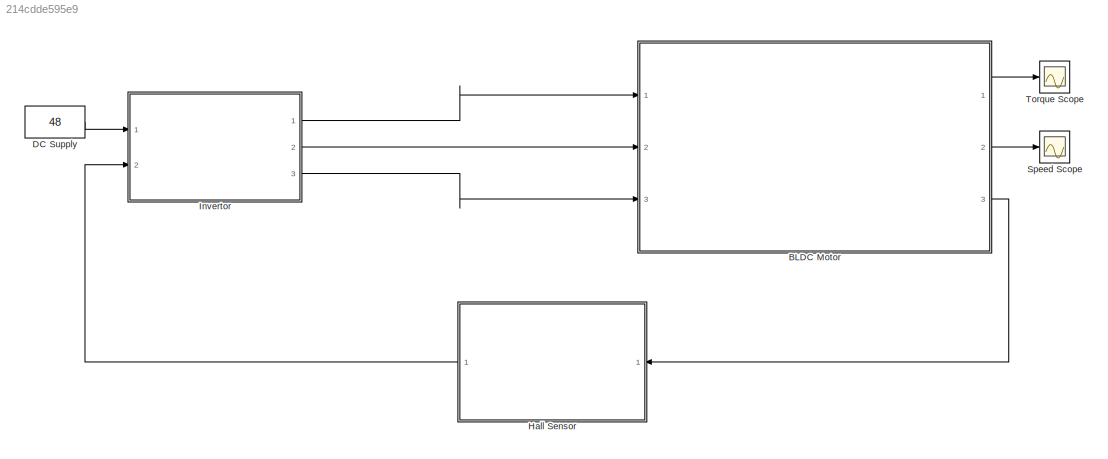
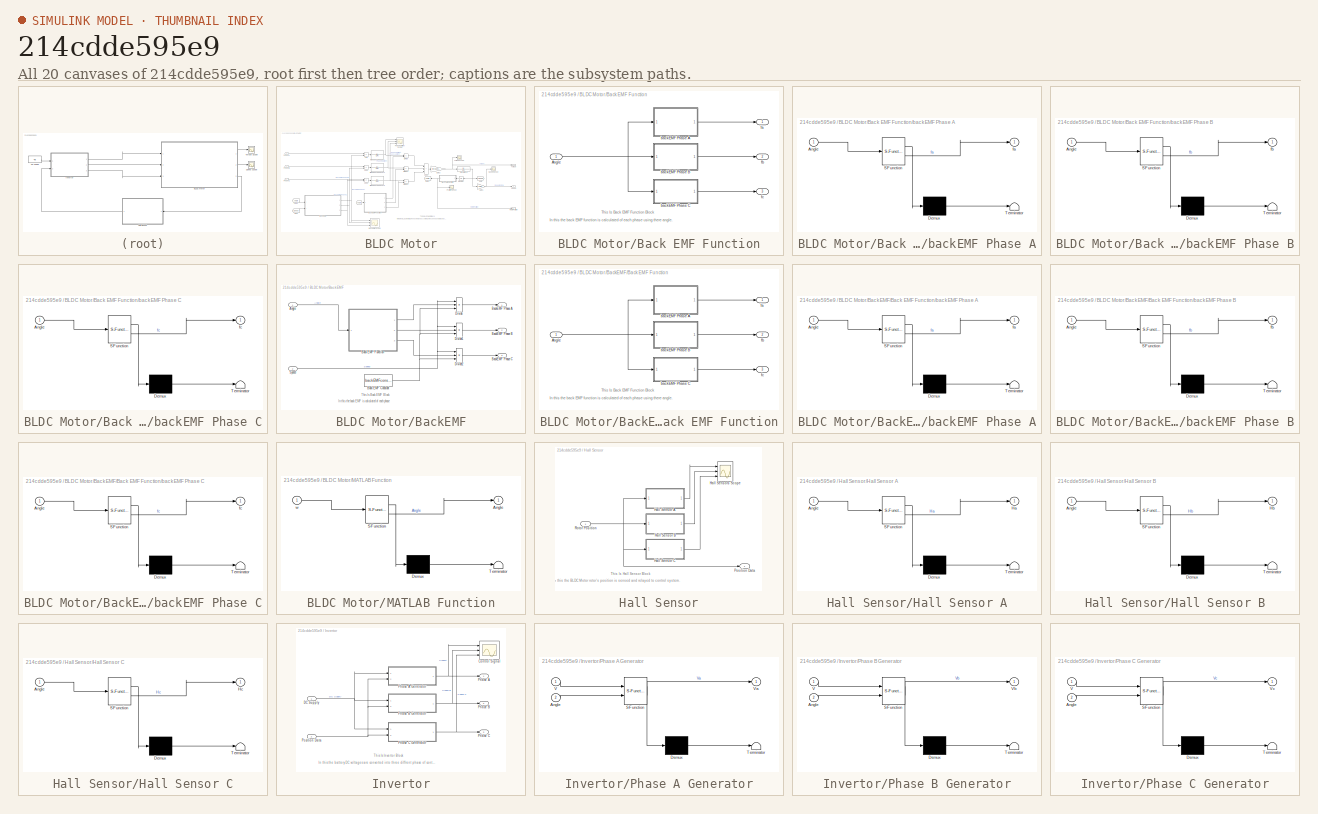
[diagram: thumbnail index - all 20 canvases of the model, root first then tree order]
MODEL slx_214cdde595e9
KIND model
CONFIG AbsTol = auto
CONFIG EnableMultiTasking = off
CONFIG FixedStep = auto
CONFIG MaxStep = auto
CONFIG MinStep = auto
CONFIG RelTol = 1e-3
CONFIG SampleTimeConstraint = Unconstrained
CONFIG SolverName = VariableStepAuto
CONFIG StartTime = 0.0
CONFIG StopTime = 1
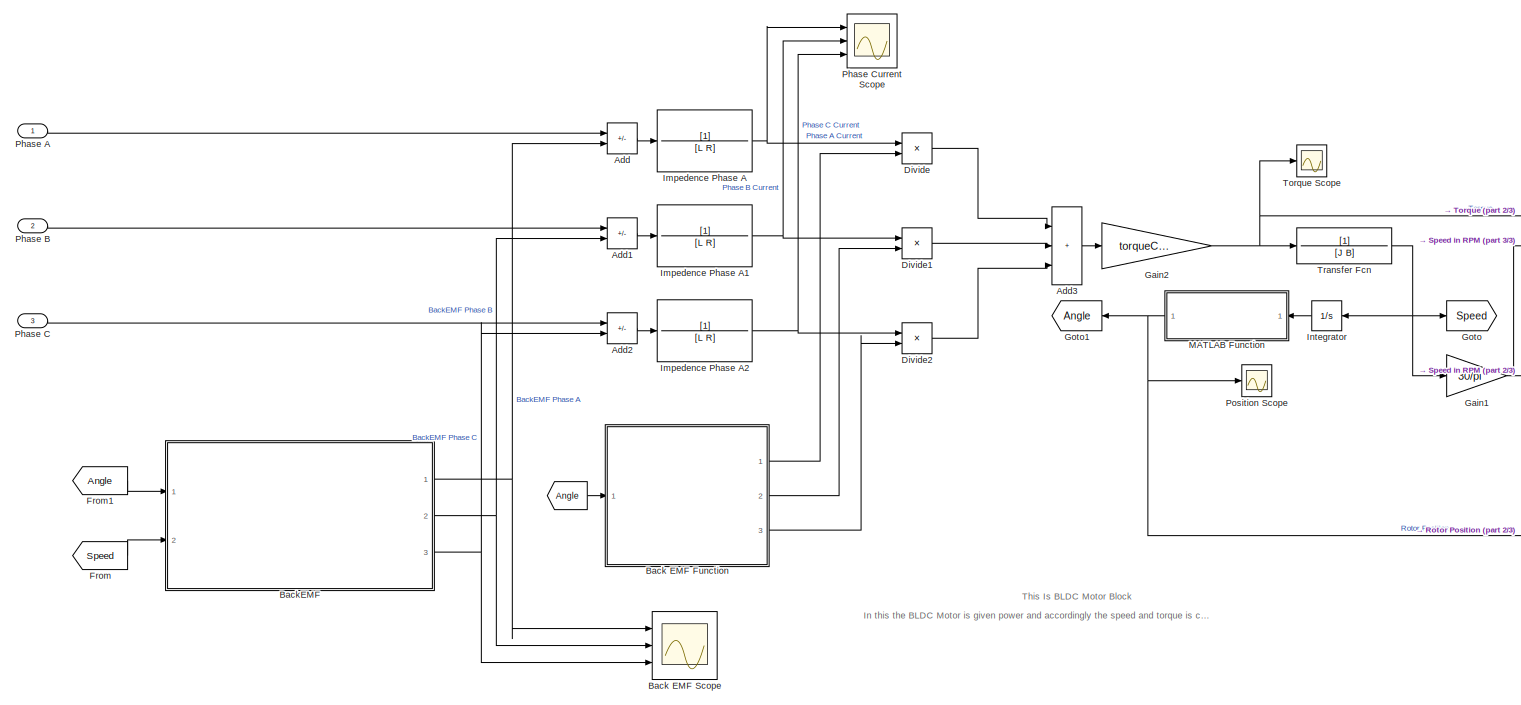
[diagram: BLDC Motor - part 1/3, most of the canvas]
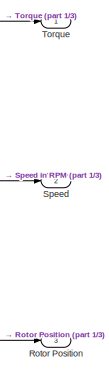
[diagram: BLDC Motor - part 2/3, middle right region]
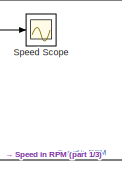
[diagram: BLDC Motor - part 3/3, middle right region]
BLOCK [SubSystem] BLDC Motor
  Ports = [3, 3]
  RequestExecContextInheritance = off
BLOCK [From] BLDC Motor/                            
  GotoTag = Angle
BLOCK [Sum] BLDC Motor/Add
  IconShape = rectangular
  Inputs = +-
  Ports = [2, 1]
BLOCK [Sum] BLDC Motor/Add1
  IconShape = rectangular
  Inputs = +-
  Ports = [2, 1]
BLOCK [Sum] BLDC Motor/Add2
  IconShape = rectangular
  Inputs = +-
  Ports = [2, 1]
BLOCK [Sum] BLDC Motor/Add3
  IconShape = rectangular
  Inputs = +++
  Ports = [3, 1]
BLOCK [SubSystem] BLDC Motor/Back EMF Function
  Ports = [1, 3]
  RequestExecContextInheritance = off
BLOCK [Inport] BLDC Motor/Back EMF Function/Angle
BLOCK [SubSystem] BLDC Motor/Back EMF Function/backEMF Phase A
  ErrorFcn = Stateflow.Translate.translate
  PermitHierarchicalResolution = ExplicitOnly
  Ports = [1, 1]
  RequestExecContextInheritance = off
  SFBlockType = MATLAB Function
  TreatAsAtomicUnit = on
BLOCK [Demux] BLDC Motor/Back EMF Function/backEMF Phase A/ Demux 
  Outputs = 1
  Ports = [1, 1]
BLOCK [S-Function] BLDC Motor/Back EMF Function/backEMF Phase A/ SFunction 
  EnableBusSupport = on
  FunctionName = sf_sfun
  PortCounts = [1 2]
  Ports = [1, 2]
  SFcnIsStateOwnerBlock = off
  SFunctionDeploymentMode = off
  Tag = Stateflow S-Function 14
BLOCK [Terminator] BLDC Motor/Back EMF Function/backEMF Phase A/ Terminator 
BLOCK [Inport] BLDC Motor/Back EMF Function/backEMF Phase A/Angle
BLOCK [Outport] BLDC Motor/Back EMF Function/backEMF Phase A/fa
BLOCK [SubSystem] BLDC Motor/Back EMF Function/backEMF Phase B
  ErrorFcn = Stateflow.Translate.translate
  PermitHierarchicalResolution = ExplicitOnly
  Ports = [1, 1]
  RequestExecContextInheritance = off
  SFBlockType = MATLAB Function
  TreatAsAtomicUnit = on
BLOCK [Demux] BLDC Motor/Back EMF Function/backEMF Phase B/ Demux 
  Outputs = 1
  Ports = [1, 1]
BLOCK [S-Function] BLDC Motor/Back EMF Function/backEMF Phase B/ SFunction 
  EnableBusSupport = on
  FunctionName = sf_sfun
  PortCounts = [1 2]
  Ports = [1, 2]
  SFcnIsStateOwnerBlock = off
  SFunctionDeploymentMode = off
  Tag = Stateflow S-Function 15
BLOCK [Terminator] BLDC Motor/Back EMF Function/backEMF Phase B/ Terminator 
BLOCK [Inport] BLDC Motor/Back EMF Function/backEMF Phase B/Angle
BLOCK [Outport] BLDC Motor/Back EMF Function/backEMF Phase B/fb
BLOCK [SubSystem] BLDC Motor/Back EMF Function/backEMF Phase C
  ErrorFcn = Stateflow.Translate.translate
  PermitHierarchicalResolution = ExplicitOnly
  Ports = [1, 1]
  RequestExecContextInheritance = off
  SFBlockType = MATLAB Function
  TreatAsAtomicUnit = on
BLOCK [Demux] BLDC Motor/Back EMF Function/backEMF Phase C/ Demux 
  Outputs = 1
  Ports = [1, 1]
BLOCK [S-Function] BLDC Motor/Back EMF Function/backEMF Phase C/ SFunction 
  EnableBusSupport = on
  FunctionName = sf_sfun
  PortCounts = [1 2]
  Ports = [1, 2]
  SFcnIsStateOwnerBlock = off
  SFunctionDeploymentMode = off
  Tag = Stateflow S-Function 16
BLOCK [Terminator] BLDC Motor/Back EMF Function/backEMF Phase C/ Terminator 
BLOCK [Inport] BLDC Motor/Back EMF Function/backEMF Phase C/Angle
BLOCK [Outport] BLDC Motor/Back EMF Function/backEMF Phase C/fc
BLOCK [Outport] BLDC Motor/Back EMF Function/fa
BLOCK [Outport] BLDC Motor/Back EMF Function/fb
  Port = 2
BLOCK [Outport] BLDC Motor/Back EMF Function/fc
  Port = 3
BLOCK [Scope] BLDC Motor/Back EMF Scope
  Floating = off
  NumInputPorts = 3
  Ports = [3]
  ScopeSpecificationString = Simulink.scopes.TimeScopeBlockCfg('CurrentConfiguration', extmgr.ConfigurationSet(extmgr.Configuration('Core','General UI',true),extmgr.Configuration('Core','Source UI',true),extmgr.Configuration('Sources','WiredSimulink',true,'DataLoggingVariableName','ScopeData9'),extmgr.Configuration('Visuals','Time Domain',true,'SerializedDisplays',{struct('MinYLimReal','-19.17112','MaxYLimReal','19.66505','YL...<+3369ch>
BLOCK [SubSystem] BLDC Motor/BackEMF
  Ports = [2, 3]
  RequestExecContextInheritance = off
BLOCK [Inport] BLDC Motor/BackEMF/Angle
BLOCK [Constant] BLDC Motor/BackEMF/Back EMF Constant
  Value = backEMFconstant
BLOCK [SubSystem] BLDC Motor/BackEMF/Back EMF Function
  Ports = [1, 3]
  RequestExecContextInheritance = off
BLOCK [Inport] BLDC Motor/BackEMF/Back EMF Function/Angle
BLOCK [SubSystem] BLDC Motor/BackEMF/Back EMF Function/backEMF Phase A
  ErrorFcn = Stateflow.Translate.translate
  PermitHierarchicalResolution = ExplicitOnly
  Ports = [1, 1]
  RequestExecContextInheritance = off
  SFBlockType = MATLAB Function
  TreatAsAtomicUnit = on
BLOCK [Demux] BLDC Motor/BackEMF/Back EMF Function/backEMF Phase A/ Demux 
  Outputs = 1
  Ports = [1, 1]
BLOCK [S-Function] BLDC Motor/BackEMF/Back EMF Function/backEMF Phase A/ SFunction 
  EnableBusSupport = on
  FunctionName = sf_sfun
  PortCounts = [1 2]
  Ports = [1, 2]
  SFcnIsStateOwnerBlock = off
  SFunctionDeploymentMode = off
  Tag = Stateflow S-Function 11
BLOCK [Terminator] BLDC Motor/BackEMF/Back EMF Function/backEMF Phase A/ Terminator 
BLOCK [Inport] BLDC Motor/BackEMF/Back EMF Function/backEMF Phase A/Angle
BLOCK [Outport] BLDC Motor/BackEMF/Back EMF Function/backEMF Phase A/fa
BLOCK [SubSystem] BLDC Motor/BackEMF/Back EMF Function/backEMF Phase B
  ErrorFcn = Stateflow.Translate.translate
  PermitHierarchicalResolution = ExplicitOnly
  Ports = [1, 1]
  RequestExecContextInheritance = off
  SFBlockType = MATLAB Function
  TreatAsAtomicUnit = on
BLOCK [Demux] BLDC Motor/BackEMF/Back EMF Function/backEMF Phase B/ Demux 
  Outputs = 1
  Ports = [1, 1]
BLOCK [S-Function] BLDC Motor/BackEMF/Back EMF Function/backEMF Phase B/ SFunction 
  EnableBusSupport = on
  FunctionName = sf_sfun
  PortCounts = [1 2]
  Ports = [1, 2]
  SFcnIsStateOwnerBlock = off
  SFunctionDeploymentMode = off
  Tag = Stateflow S-Function 12
BLOCK [Terminator] BLDC Motor/BackEMF/Back EMF Function/backEMF Phase B/ Terminator 
BLOCK [Inport] BLDC Motor/BackEMF/Back EMF Function/backEMF Phase B/Angle
BLOCK [Outport] BLDC Motor/BackEMF/Back EMF Function/backEMF Phase B/fb
BLOCK [SubSystem] BLDC Motor/BackEMF/Back EMF Function/backEMF Phase C
  ErrorFcn = Stateflow.Translate.translate
  PermitHierarchicalResolution = ExplicitOnly
  Ports = [1, 1]
  RequestExecContextInheritance = off
  SFBlockType = MATLAB Function
  TreatAsAtomicUnit = on
BLOCK [Demux] BLDC Motor/BackEMF/Back EMF Function/backEMF Phase C/ Demux 
  Outputs = 1
  Ports = [1, 1]
BLOCK [S-Function] BLDC Motor/BackEMF/Back EMF Function/backEMF Phase C/ SFunction 
  EnableBusSupport = on
  FunctionName = sf_sfun
  PortCounts = [1 2]
  Ports = [1, 2]
  SFcnIsStateOwnerBlock = off
  SFunctionDeploymentMode = off
  Tag = Stateflow S-Function 13
BLOCK [Terminator] BLDC Motor/BackEMF/Back EMF Function/backEMF Phase C/ Terminator 
BLOCK [Inport] BLDC Motor/BackEMF/Back EMF Function/backEMF Phase C/Angle
BLOCK [Outport] BLDC Motor/BackEMF/Back EMF Function/backEMF Phase C/fc
BLOCK [Outport] BLDC Motor/BackEMF/Back EMF Function/fa
BLOCK [Outport] BLDC Motor/BackEMF/Back EMF Function/fb
  Port = 2
BLOCK [Outport] BLDC Motor/BackEMF/Back EMF Function/fc
  Port = 3
BLOCK [Outport] BLDC Motor/BackEMF/BackEMF Phase A
BLOCK [Outport] BLDC Motor/BackEMF/BackEMF Phase B
  Port = 2
BLOCK [Outport] BLDC Motor/BackEMF/BackEMF Phase C
  Port = 3
BLOCK [Product] BLDC Motor/BackEMF/Divide
  Inputs = ***
  Ports = [3, 1]
BLOCK [Product] BLDC Motor/BackEMF/Divide1
  Inputs = ***
  Ports = [3, 1]
BLOCK [Product] BLDC Motor/BackEMF/Divide2
  Inputs = ***
  Ports = [3, 1]
BLOCK [Inport] BLDC Motor/BackEMF/Speed
  Port = 2
BLOCK [Product] BLDC Motor/Divide
  Inputs = **
  Ports = [2, 1]
BLOCK [Product] BLDC Motor/Divide1
  Inputs = **
  Ports = [2, 1]
BLOCK [Product] BLDC Motor/Divide2
  Inputs = **
  Ports = [2, 1]
BLOCK [From] BLDC Motor/From
  GotoTag = Speed
BLOCK [From] BLDC Motor/From1
  GotoTag = Angle
BLOCK [Gain] BLDC Motor/Gain1
  Gain = 30/pi
BLOCK [Gain] BLDC Motor/Gain2
  Gain = torqueConstant
BLOCK [Goto] BLDC Motor/Goto
  GotoTag = Speed
BLOCK [Goto] BLDC Motor/Goto1
  GotoTag = Angle
BLOCK [TransferFcn] BLDC Motor/Impedence Phase A
  Denominator = [L R]
BLOCK [TransferFcn] BLDC Motor/Impedence Phase A1
  Denominator = [L R]
BLOCK [TransferFcn] BLDC Motor/Impedence Phase A2
  Denominator = [L R]
BLOCK [Integrator] BLDC Motor/Integrator
  Ports = [1, 1]
BLOCK [SubSystem] BLDC Motor/MATLAB Function
  ErrorFcn = Stateflow.Translate.translate
  PermitHierarchicalResolution = ExplicitOnly
  Ports = [1, 1]
  RequestExecContextInheritance = off
  SFBlockType = MATLAB Function
  TreatAsAtomicUnit = on
BLOCK [Demux] BLDC Motor/MATLAB Function/ Demux 
  Outputs = 1
  Ports = [1, 1]
BLOCK [S-Function] BLDC Motor/MATLAB Function/ SFunction 
  EnableBusSupport = on
  FunctionName = sf_sfun
  PortCounts = [1 2]
  Ports = [1, 2]
  SFcnIsStateOwnerBlock = off
  SFunctionDeploymentMode = off
  Tag = Stateflow S-Function 17
BLOCK [Terminator] BLDC Motor/MATLAB Function/ Terminator 
BLOCK [Outport] BLDC Motor/MATLAB Function/Angle
BLOCK [Inport] BLDC Motor/MATLAB Function/w
BLOCK [Inport] BLDC Motor/Phase A 
BLOCK [Inport] BLDC Motor/Phase B
  Port = 2
BLOCK [Inport] BLDC Motor/Phase C
  Port = 3
BLOCK [Scope] BLDC Motor/Phase Current Scope
  Floating = off
  NumInputPorts = 3
  Ports = [3]
  ScopeSpecificationString = Simulink.scopes.TimeScopeBlockCfg('CurrentConfiguration', extmgr.ConfigurationSet(extmgr.Configuration('Core','General UI',true),extmgr.Configuration('Core','Source UI',true),extmgr.Configuration('Sources','WiredSimulink',true,'DataLoggingVariableName','ScopeData8'),extmgr.Configuration('Visuals','Time Domain',true,'SerializedDisplays',{struct('MinYLimReal','-125.00000','MaxYLimReal','125.00000','...<+3406ch>
BLOCK [Scope] BLDC Motor/Position Scope
  Floating = off
  NumInputPorts = 1
  Ports = [1]
  ScopeSpecificationString = Simulink.scopes.TimeScopeBlockCfg('CurrentConfiguration', extmgr.ConfigurationSet(extmgr.Configuration('Core','General UI',true),extmgr.Configuration('Core','Source UI',true),extmgr.Configuration('Sources','WiredSimulink',true,'DataLoggingVariableName','ScopeData7'),extmgr.Configuration('Visuals','Time Domain',true,'SerializedDisplays',{struct('MinYLimReal','-0.78536','MaxYLimReal','7.06825','YLab...<+1448ch>
BLOCK [Outport] BLDC Motor/Rotor Position
  Port = 3
BLOCK [Outport] BLDC Motor/Speed
  Port = 2
BLOCK [Scope] BLDC Motor/Speed Scope
  Floating = off
  NumInputPorts = 1
  Ports = [1]
  ScopeSpecificationString = Simulink.scopes.TimeScopeBlockCfg('CurrentConfiguration', extmgr.ConfigurationSet(extmgr.Configuration('Core','General UI',true),extmgr.Configuration('Core','Source UI',true),extmgr.Configuration('Sources','WiredSimulink',true,'DataLoggingVariableName','ScopeData11'),extmgr.Configuration('Visuals','Time Domain',true,'SerializedDisplays',{struct('MinYLimReal','-330.61163','MaxYLimReal','2975.50469'...<+1616ch>
BLOCK [Outport] BLDC Motor/Torque
BLOCK [Scope] BLDC Motor/Torque Scope
  Floating = off
  NumInputPorts = 1
  Ports = [1]
  ScopeSpecificationString = Simulink.scopes.TimeScopeBlockCfg('CurrentConfiguration', extmgr.ConfigurationSet(extmgr.Configuration('Core','General UI',true),extmgr.Configuration('Core','Source UI',true),extmgr.Configuration('Sources','WiredSimulink',true,'DataLoggingVariableName','ScopeData10'),extmgr.Configuration('Visuals','Time Domain',true,'SerializedDisplays',{struct('MinYLimReal','-1.32709','MaxYLimReal','11.94379','YL...<+1637ch>
BLOCK [TransferFcn] BLDC Motor/Transfer Fcn
  Denominator = [J B]
BLOCK [Constant] DC Supply
  Value = 48
BLOCK [SubSystem] Hall Sensor
  Ports = [1, 1]
  RequestExecContextInheritance = off
BLOCK [SubSystem] Hall Sensor/Hall Sensor A
  ErrorFcn = Stateflow.Translate.translate
  PermitHierarchicalResolution = ExplicitOnly
  Ports = [1, 1]
  RequestExecContextInheritance = off
  SFBlockType = MATLAB Function
  TreatAsAtomicUnit = on
BLOCK [Demux] Hall Sensor/Hall Sensor A/ Demux 
  Outputs = 1
  Ports = [1, 1]
BLOCK [S-Function] Hall Sensor/Hall Sensor A/ SFunction 
  EnableBusSupport = on
  FunctionName = sf_sfun
  PortCounts = [1 2]
  Ports = [1, 2]
  SFcnIsStateOwnerBlock = off
  SFunctionDeploymentMode = off
  Tag = Stateflow S-Function 4
BLOCK [Terminator] Hall Sensor/Hall Sensor A/ Terminator 
BLOCK [Inport] Hall Sensor/Hall Sensor A/Angle
BLOCK [Outport] Hall Sensor/Hall Sensor A/Ha
BLOCK [SubSystem] Hall Sensor/Hall Sensor B
  ErrorFcn = Stateflow.Translate.translate
  PermitHierarchicalResolution = ExplicitOnly
  Ports = [1, 1]
  RequestExecContextInheritance = off
  SFBlockType = MATLAB Function
  TreatAsAtomicUnit = on
BLOCK [Demux] Hall Sensor/Hall Sensor B/ Demux 
  Outputs = 1
  Ports = [1, 1]
BLOCK [S-Function] Hall Sensor/Hall Sensor B/ SFunction 
  EnableBusSupport = on
  FunctionName = sf_sfun
  PortCounts = [1 2]
  Ports = [1, 2]
  SFcnIsStateOwnerBlock = off
  SFunctionDeploymentMode = off
  Tag = Stateflow S-Function 5
BLOCK [Terminator] Hall Sensor/Hall Sensor B/ Terminator 
BLOCK [Inport] Hall Sensor/Hall Sensor B/Angle
BLOCK [Outport] Hall Sensor/Hall Sensor B/Hb
BLOCK [SubSystem] Hall Sensor/Hall Sensor C
  ErrorFcn = Stateflow.Translate.translate
  PermitHierarchicalResolution = ExplicitOnly
  Ports = [1, 1]
  RequestExecContextInheritance = off
  SFBlockType = MATLAB Function
  TreatAsAtomicUnit = on
BLOCK [Demux] Hall Sensor/Hall Sensor C/ Demux 
  Outputs = 1
  Ports = [1, 1]
BLOCK [S-Function] Hall Sensor/Hall Sensor C/ SFunction 
  EnableBusSupport = on
  FunctionName = sf_sfun
  PortCounts = [1 2]
  Ports = [1, 2]
  SFcnIsStateOwnerBlock = off
  SFunctionDeploymentMode = off
  Tag = Stateflow S-Function 6
BLOCK [Terminator] Hall Sensor/Hall Sensor C/ Terminator 
BLOCK [Inport] Hall Sensor/Hall Sensor C/Angle
BLOCK [Outport] Hall Sensor/Hall Sensor C/Hc
BLOCK [Scope] Hall Sensor/Hall Sensors Scope
  Floating = off
  NumInputPorts = 3
  Ports = [3]
  ScopeSpecificationString = Simulink.scopes.TimeScopeBlockCfg('CurrentConfiguration', extmgr.ConfigurationSet(extmgr.Configuration('Core','General UI',true),extmgr.Configuration('Core','Source UI',true),extmgr.Configuration('Sources','WiredSimulink',true),extmgr.Configuration('Visuals','Time Domain',true,'SerializedDisplays',{struct('MinYLimReal','-0.16175','MaxYLimReal','1.17159','YLabelReal','','MinYLimMag','0.00000','MaxY...<+3301ch>
BLOCK [Outport] Hall Sensor/Position Data
BLOCK [Inport] Hall Sensor/Rotor Position
BLOCK [SubSystem] Invertor
  Ports = [2, 3]
  RequestExecContextInheritance = off
BLOCK [Scope] Invertor/Control Signal
  Floating = off
  NumInputPorts = 3
  Ports = [3]
  ScopeSpecificationString = Simulink.scopes.TimeScopeBlockCfg('CurrentConfiguration', extmgr.ConfigurationSet(extmgr.Configuration('Core','General UI',true,'FigureColor',[0 0 0]),extmgr.Configuration('Core','Source UI',true),extmgr.Configuration('Sources','WiredSimulink',true,'DataLoggingVariableName','ScopeData4'),extmgr.Configuration('Visuals','Time Domain',true,'SerializedDisplays',{struct('MinYLimReal','-60.00000','MaxYL...<+3148ch>
BLOCK [Inport] Invertor/DC Supply
BLOCK [Outport] Invertor/Phase A
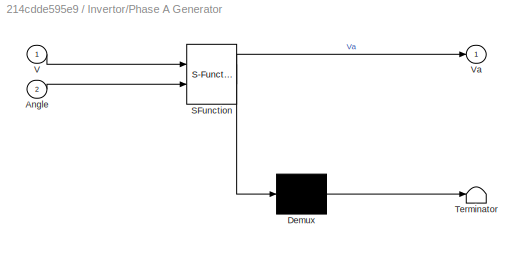
BLOCK [SubSystem] Invertor/Phase A Generator
  ErrorFcn = Stateflow.Translate.translate
  PermitHierarchicalResolution = ExplicitOnly
  Ports = [2, 1]
  RequestExecContextInheritance = off
  SFBlockType = MATLAB Function
  TreatAsAtomicUnit = on
BLOCK [Demux] Invertor/Phase A Generator/ Demux 
  Outputs = 1
  Ports = [1, 1]
BLOCK [S-Function] Invertor/Phase A Generator/ SFunction 
  EnableBusSupport = on
  FunctionName = sf_sfun
  PortCounts = [2 2]
  Ports = [2, 2]
  SFcnIsStateOwnerBlock = off
  SFunctionDeploymentMode = off
  Tag = Stateflow S-Function 2
BLOCK [Terminator] Invertor/Phase A Generator/ Terminator 
BLOCK [Inport] Invertor/Phase A Generator/Angle
  Port = 2
BLOCK [Inport] Invertor/Phase A Generator/V
BLOCK [Outport] Invertor/Phase A Generator/Va
BLOCK [Outport] Invertor/Phase B
  Port = 2
BLOCK [SubSystem] Invertor/Phase B Generator
  ErrorFcn = Stateflow.Translate.translate
  PermitHierarchicalResolution = ExplicitOnly
  Ports = [2, 1]
  RequestExecContextInheritance = off
  SFBlockType = MATLAB Function
  TreatAsAtomicUnit = on
BLOCK [Demux] Invertor/Phase B Generator/ Demux 
  Outputs = 1
  Ports = [1, 1]
BLOCK [S-Function] Invertor/Phase B Generator/ SFunction 
  EnableBusSupport = on
  FunctionName = sf_sfun
  PortCounts = [2 2]
  Ports = [2, 2]
  SFcnIsStateOwnerBlock = off
  SFunctionDeploymentMode = off
  Tag = Stateflow S-Function 1
BLOCK [Terminator] Invertor/Phase B Generator/ Terminator 
BLOCK [Inport] Invertor/Phase B Generator/Angle
  Port = 2
BLOCK [Inport] Invertor/Phase B Generator/V
BLOCK [Outport] Invertor/Phase B Generator/Vb
BLOCK [Outport] Invertor/Phase C
  Port = 3
BLOCK [SubSystem] Invertor/Phase C Generator
  ErrorFcn = Stateflow.Translate.translate
  PermitHierarchicalResolution = ExplicitOnly
  Ports = [2, 1]
  RequestExecContextInheritance = off
  SFBlockType = MATLAB Function
  TreatAsAtomicUnit = on
BLOCK [Demux] Invertor/Phase C Generator/ Demux 
  Outputs = 1
  Ports = [1, 1]
BLOCK [S-Function] Invertor/Phase C Generator/ SFunction 
  EnableBusSupport = on
  FunctionName = sf_sfun
  PortCounts = [2 2]
  Ports = [2, 2]
  SFcnIsStateOwnerBlock = off
  SFunctionDeploymentMode = off
  Tag = Stateflow S-Function 3
BLOCK [Terminator] Invertor/Phase C Generator/ Terminator 
BLOCK [Inport] Invertor/Phase C Generator/Angle
  Port = 2
BLOCK [Inport] Invertor/Phase C Generator/V
BLOCK [Outport] Invertor/Phase C Generator/Vc
BLOCK [Inport] Invertor/Position Data
  Port = 2
BLOCK [Scope] Speed Scope
  Floating = off
  NumInputPorts = 1
  Ports = [1]
  ScopeSpecificationString = Simulink.scopes.TimeScopeBlockCfg('CurrentConfiguration', extmgr.ConfigurationSet(extmgr.Configuration('Core','General UI',true),extmgr.Configuration('Core','Source UI',true),extmgr.Configuration('Sources','WiredSimulink',true,'DataLoggingVariableName','ScopeData2'),extmgr.Configuration('Visuals','Time Domain',true,'SerializedDisplays',{struct('MinYLimReal','-330.61163','MaxYLimReal','2975.50469',...<+1597ch>
BLOCK [Scope] Torque Scope
  Floating = off
  NumInputPorts = 1
  Ports = [1]
  ScopeSpecificationString = Simulink.scopes.TimeScopeBlockCfg('CurrentConfiguration', extmgr.ConfigurationSet(extmgr.Configuration('Core','General UI',true),extmgr.Configuration('Core','Source UI',true),extmgr.Configuration('Sources','WiredSimulink',true,'DataLoggingVariableName','ScopeData1'),extmgr.Configuration('Visuals','Time Domain',true,'SerializedDisplays',{struct('MinYLimReal','-0.9249','MaxYLimReal','8.32414','YLabe...<+1571ch>
ANNOTATION BLDC Motor: In this the BLDC Motor is given power and accordingly the speed and torque is calculated.
ANNOTATION BLDC Motor: This Is BLDC Motor Block
ANNOTATION BLDC Motor/Back EMF Function: In this the back EMF function is calculated of each phase using there angle.
ANNOTATION BLDC Motor/Back EMF Function: This Is Back EMF Function Block
ANNOTATION BLDC Motor/BackEMF: In this the back EMF is calculated of each phase
ANNOTATION BLDC Motor/BackEMF: This Is Back EMF Block
ANNOTATION BLDC Motor/BackEMF/Back EMF Function: In this the back EMF function is calculated of each phase using there angle.
ANNOTATION BLDC Motor/BackEMF/Back EMF Function: This Is Back EMF Function Block
ANNOTATION Hall Sensor: In this the BLDC Motor rotor's position is sensed and relayed to control system.
ANNOTATION Hall Sensor: This Is Hall Sensor Block
ANNOTATION Invertor: In this the battery DC voltages are converted into three diffrent phase of control signal.
ANNOTATION Invertor: This Is Invertor Block
LINE BLDC Motor/                            :1 -> BLDC Motor/Back EMF Function:1
LINE BLDC Motor/Add1:1 -> BLDC Motor/Impedence Phase A1:1
LINE BLDC Motor/Add2:1 -> BLDC Motor/Impedence Phase A2:1
LINE BLDC Motor/Add3:1 -> BLDC Motor/Gain2:1
LINE BLDC Motor/Add:1 -> BLDC Motor/Impedence Phase A:1
NET BLDC Motor/Back EMF Function/Angle:1 -> BLDC Motor/Back EMF Function/backEMF Phase A:1, BLDC Motor/Back EMF Function/backEMF Phase B:1, BLDC Motor/Back EMF Function/backEMF Phase C:1
LINE BLDC Motor/Back EMF Function/backEMF Phase A:1 -> BLDC Motor/Back EMF Function/fa:1
LINE BLDC Motor/Back EMF Function/backEMF Phase B:1 -> BLDC Motor/Back EMF Function/fb:1
LINE BLDC Motor/Back EMF Function/backEMF Phase C:1 -> BLDC Motor/Back EMF Function/fc:1
LINE BLDC Motor/Back EMF Function:1 -> BLDC Motor/Divide:2
LINE BLDC Motor/Back EMF Function:2 -> BLDC Motor/Divide1:2
LINE BLDC Motor/Back EMF Function:3 -> BLDC Motor/Divide2:2
LINE BLDC Motor/BackEMF/Angle:1 -> BLDC Motor/BackEMF/Back EMF Function:1
NET BLDC Motor/BackEMF/Back EMF Constant:1 -> BLDC Motor/BackEMF/Divide1:3, BLDC Motor/BackEMF/Divide2:3, BLDC Motor/BackEMF/Divide:3
NET BLDC Motor/BackEMF/Back EMF Function/Angle:1 -> BLDC Motor/BackEMF/Back EMF Function/backEMF Phase A:1, BLDC Motor/BackEMF/Back EMF Function/backEMF Phase B:1, BLDC Motor/BackEMF/Back EMF Function/backEMF Phase C:1
LINE BLDC Motor/BackEMF/Back EMF Function/backEMF Phase A:1 -> BLDC Motor/BackEMF/Back EMF Function/fa:1
LINE BLDC Motor/BackEMF/Back EMF Function/backEMF Phase B:1 -> BLDC Motor/BackEMF/Back EMF Function/fb:1
LINE BLDC Motor/BackEMF/Back EMF Function/backEMF Phase C:1 -> BLDC Motor/BackEMF/Back EMF Function/fc:1
LINE BLDC Motor/BackEMF/Back EMF Function:1 -> BLDC Motor/BackEMF/Divide:2
LINE BLDC Motor/BackEMF/Back EMF Function:2 -> BLDC Motor/BackEMF/Divide1:2
LINE BLDC Motor/BackEMF/Back EMF Function:3 -> BLDC Motor/BackEMF/Divide2:2
LINE BLDC Motor/BackEMF/Divide1:1 -> BLDC Motor/BackEMF/BackEMF Phase B:1
LINE BLDC Motor/BackEMF/Divide2:1 -> BLDC Motor/BackEMF/BackEMF Phase C:1
LINE BLDC Motor/BackEMF/Divide:1 -> BLDC Motor/BackEMF/BackEMF Phase A:1
NET BLDC Motor/BackEMF/Speed:1 -> BLDC Motor/BackEMF/Divide1:1, BLDC Motor/BackEMF/Divide2:1, BLDC Motor/BackEMF/Divide:1
NET BLDC Motor/BackEMF:1 -> BLDC Motor/Add:2, BLDC Motor/Back EMF Scope:1
NET BLDC Motor/BackEMF:2 -> BLDC Motor/Add1:2, BLDC Motor/Back EMF Scope:2
NET BLDC Motor/BackEMF:3 -> BLDC Motor/Add2:2, BLDC Motor/Back EMF Scope:3
LINE BLDC Motor/Divide1:1 -> BLDC Motor/Add3:2
LINE BLDC Motor/Divide2:1 -> BLDC Motor/Add3:3
LINE BLDC Motor/Divide:1 -> BLDC Motor/Add3:1
LINE BLDC Motor/From1:1 -> BLDC Motor/BackEMF:1
LINE BLDC Motor/From:1 -> BLDC Motor/BackEMF:2
NET BLDC Motor/Gain1:1 -> BLDC Motor/Speed Scope:1, BLDC Motor/Speed:1
NET BLDC Motor/Gain2:1 -> BLDC Motor/Torque Scope:1, BLDC Motor/Torque:1, BLDC Motor/Transfer Fcn:1
NET BLDC Motor/Impedence Phase A1:1 -> BLDC Motor/Divide1:1, BLDC Motor/Phase Current Scope:2
NET BLDC Motor/Impedence Phase A2:1 -> BLDC Motor/Divide2:1, BLDC Motor/Phase Current Scope:3
NET BLDC Motor/Impedence Phase A:1 -> BLDC Motor/Divide:1, BLDC Motor/Phase Current Scope:1
LINE BLDC Motor/Integrator:1 -> BLDC Motor/MATLAB Function:1
NET BLDC Motor/MATLAB Function:1 -> BLDC Motor/Goto1:1, BLDC Motor/Position Scope:1, BLDC Motor/Rotor Position:1
LINE BLDC Motor/Phase A :1 -> BLDC Motor/Add:1
LINE BLDC Motor/Phase B:1 -> BLDC Motor/Add1:1
LINE BLDC Motor/Phase C:1 -> BLDC Motor/Add2:1
NET BLDC Motor/Transfer Fcn:1 -> BLDC Motor/Gain1:1, BLDC Motor/Goto:1, BLDC Motor/Integrator:1
LINE BLDC Motor:1 -> Torque Scope:1
LINE BLDC Motor:2 -> Speed Scope:1
LINE BLDC Motor:3 -> Hall Sensor:1
LINE DC Supply:1 -> Invertor:1
LINE Hall Sensor/Hall Sensor A:1 -> Hall Sensor/Hall Sensors Scope:1
LINE Hall Sensor/Hall Sensor B:1 -> Hall Sensor/Hall Sensors Scope:2
LINE Hall Sensor/Hall Sensor C:1 -> Hall Sensor/Hall Sensors Scope:3
NET Hall Sensor/Rotor Position:1 -> Hall Sensor/Hall Sensor A:1, Hall Sensor/Hall Sensor B:1, Hall Sensor/Hall Sensor C:1, Hall Sensor/Position Data:1
LINE Hall Sensor:1 -> Invertor:2
NET Invertor/DC Supply:1 -> Invertor/Phase A Generator:1, Invertor/Phase B Generator:1, Invertor/Phase C Generator:1
NET Invertor/Phase A Generator:1 -> Invertor/Control Signal:1, Invertor/Phase A:1
NET Invertor/Phase B Generator:1 -> Invertor/Control Signal:2, Invertor/Phase B:1
NET Invertor/Phase C Generator:1 -> Invertor/Control Signal:3, Invertor/Phase C:1
NET Invertor/Position Data:1 -> Invertor/Phase A Generator:2, Invertor/Phase B Generator:2, Invertor/Phase C Generator:2
LINE Invertor:1 -> BLDC Motor:1
LINE Invertor:2 -> BLDC Motor:2
LINE Invertor:3 -> BLDC Motor:3
note: NET lines group one-source signal fan-out (src -> all destinations, sorted); 1:1 wires keep LINE
CHART Invertor/Phase A Generator states=1 transitions=1
  STATE_LABEL 'eML_blk_kernel()'
  STATE_LABEL 'SCRIPT:\nfunction Va = switchLogicPhaseA(V,Angle)\nif Angle<=pi/3 && Angle >= 0\n    Va = V;\nelseif Angle>=pi/3 && Angle <= pi*2/3\n    Va = V;\nelseif Angle>=pi*2/3 && Angle <= pi\n    Va = 0;\nelseif Angle>=pi && Angle <= pi*4/3\n    Va = -V;\nelseif Angle>=pi*4/3 && Angle <= pi*5/3\n    Va = -V;\nelse\n    Va = 0;\nend\nend'
CHART Invertor/Phase C Generator states=1 transitions=1
  STATE_LABEL 'eML_blk_kernel()'
  STATE_LABEL 'SCRIPT:\nfunction Vc = switchLogicPhaseC(V,Angle)\nif Angle<=pi/3 && Angle >= 0\n    Vc = 0;\nelseif Angle>=pi/3 && Angle <= pi*2/3\n    Vc = -V;\nelseif Angle>=pi*2/3 && Angle <= pi\n    Vc = -V;\nelseif Angle>=pi && Angle <= pi*4/3\n    Vc = 0;\nelseif Angle>=pi*4/3 && Angle <= pi*5/3\n    Vc = V;\nelse\n    Vc = V;\nend\nend\n'
CHART Hall Sensor/Hall Sensor A states=1 transitions=1
  STATE_LABEL 'eML_blk_kernel()'
  STATE_LABEL 'SCRIPT:\nfunction Ha = hallSensorA(Angle)\nif Angle<=pi/3 && Angle >= 0\n    Ha = 1;\nelseif Angle>=pi/3 && Angle <= pi*2/3\n    Ha = 1;\nelseif Angle>=pi*2/3 && Angle <= pi\n    Ha = 0;\nelseif Angle>=pi && Angle <= pi*4/3\n    Ha = 0;\nelseif Angle>=pi*4/3 && Angle <= pi*5/3\n    Ha = 0;\nelse\n    Ha = 1;\nend\nend'
CHART Hall Sensor/Hall Sensor B states=1 transitions=1
  STATE_LABEL 'eML_blk_kernel()'
  STATE_LABEL 'SCRIPT:\nfunction Hb = hallSensorB(Angle)\nif Angle<=pi/3 && Angle >= 0\n    Hb = 0;\nelseif Angle>=pi/3 && Angle <= pi*2/3\n    Hb = 1;\nelseif Angle>=pi*2/3 && Angle <= pi\n    Hb = 1;\nelseif Angle>=pi && Angle <= pi*4/3\n    Hb = 1;\nelseif Angle>=pi*4/3 && Angle <= pi*5/3\n    Hb = 0;\nelse\n    Hb = 0;\nend\nend'
CHART Hall Sensor/Hall Sensor C states=1 transitions=1
  STATE_LABEL 'eML_blk_kernel()'
  STATE_LABEL 'SCRIPT:\nfunction Hc = hallSensorC(Angle)\nif Angle<=pi/3 && Angle >= 0\n    Hc = 0;\nelseif Angle>=pi/3 && Angle <= pi*2/3\n    Hc = 0;\nelseif Angle>=pi*2/3 && Angle <= pi\n    Hc = 0;\nelseif Angle>=pi && Angle <= pi*4/3\n    Hc = 1;\nelseif Angle>=pi*4/3 && Angle <= pi*5/3\n    Hc = 1;\nelse\n    Hc = 1;\nend\nend'
CHART BLDC Motor/BackEMF/Back EMF Function/backEMF Phase A states=1 transitions=1
  STATE_LABEL 'eML_blk_kernel()'
  STATE_LABEL 'SCRIPT:\nfunction fa = backEMFa(Angle)\n    if Angle >= 0 && Angle <= pi/6\n        fa = 6*Angle/pi;\n    elseif Angle >= pi/6 && Angle <= pi*5/6\n        fa = 1;\n    elseif Angle >= pi*5/6 && Angle <= pi*7/6\n        fa = -6*Angle/pi + 6;\n    elseif Angle >= pi*7/6 && Angle <= pi*11/6\n        fa = -1;\n    else \n        fa = 6*Angle/pi - 12;\n    end\nend\n'
CHART BLDC Motor/BackEMF/Back EMF Function/backEMF Phase B states=1 transitions=1
  STATE_LABEL 'eML_blk_kernel()'
  STATE_LABEL 'SCRIPT:\nfunction fb = backEMFb(Angle)\n    if Angle >= 0 && Angle <= pi/2\n        fb = -1;\n    elseif Angle >= pi/2 && Angle <= pi*5/6\n        fb = 6*Angle/pi - 4;\n    elseif Angle >= pi*5/6 && Angle <= pi*9/6\n        fb = 1;\n    elseif Angle >= pi*9/6 && Angle <= pi*11/6\n        fb = -6*Angle/pi + 10;\n    else \n        fb = -1;\n    end\nend\n'
CHART BLDC Motor/BackEMF/Back EMF Function/backEMF Phase C states=1 transitions=1
  STATE_LABEL 'eML_blk_kernel()'
  STATE_LABEL 'SCRIPT:\nfunction fc = backEMFc(Angle)\n    if Angle >= 0 && Angle <= pi/6\n        fc = 1;\n    elseif Angle >= pi/6 && Angle <= pi/2\n        fc = -6*Angle/pi + 2;\n    elseif Angle >= pi/2 && Angle <= pi*7/6\n        fc = -1;\n    elseif Angle >= pi*7/6 && Angle <= pi*9/6\n        fc = 6*Angle/pi - 8;\n    else \n        fc = 1;\n    end\nend\n'
CHART BLDC Motor/Back EMF Function/backEMF Phase A states=1 transitions=1
  STATE_LABEL 'eML_blk_kernel()'
  STATE_LABEL 'SCRIPT:\nfunction fa = backEMFa(Angle)\n    if Angle >= 0 && Angle <= pi/6\n        fa = 6*Angle/pi;\n    elseif Angle >= pi/6 && Angle <= pi*5/6\n        fa = 1;\n    elseif Angle >= pi*5/6 && Angle <= pi*7/6\n        fa = -6*Angle/pi + 6;\n    elseif Angle >= pi*7/6 && Angle <= pi*11/6\n        fa = -1;\n    else \n        fa = 6*Angle/pi - 12;\n    end\nend\n'
CHART Invertor/Phase B Generator states=1 transitions=1
  STATE_LABEL 'eML_blk_kernel()'
  STATE_LABEL 'SCRIPT:\nfunction Vb = switchLogicPhaseB(V,Angle)\nif Angle<=pi/3 && Angle >= 0\n    Vb = -V;\nelseif Angle>=pi/3 && Angle <= pi*2/3\n    Vb = 0;\nelseif Angle>=pi*2/3 && Angle <= pi\n    Vb = V;\nelseif Angle>=pi && Angle <= pi*4/3\n    Vb = V;\nelseif Angle>=pi*4/3 && Angle <= pi*5/3\n    Vb = 0;\nelse\n    Vb = -V;\nend\nend\n\n'
CHART BLDC Motor/Back EMF Function/backEMF Phase B states=1 transitions=1
  STATE_LABEL 'eML_blk_kernel()'
  STATE_LABEL 'SCRIPT:\nfunction fb = backEMFb(Angle)\n    if Angle >= 0 && Angle <= pi/2\n        fb = -1;\n    elseif Angle >= pi/2 && Angle <= pi*5/6\n        fb = 6*Angle/pi - 4;\n    elseif Angle >= pi*5/6 && Angle <= pi*9/6\n        fb = 1;\n    elseif Angle >= pi*9/6 && Angle <= pi*11/6\n        fb = -6*Angle/pi + 10;\n    else \n        fb = -1;\n    end\nend\n'
CHART BLDC Motor/Back EMF Function/backEMF Phase C states=1 transitions=1
  STATE_LABEL 'eML_blk_kernel()'
  STATE_LABEL 'SCRIPT:\nfunction fc = backEMFc(Angle)\n    if Angle >= 0 && Angle <= pi/6\n        fc = 1;\n    elseif Angle >= pi/6 && Angle <= pi/2\n        fc = -6*Angle/pi + 2;\n    elseif Angle >= pi/2 && Angle <= pi*7/6\n        fc = -1;\n    elseif Angle >= pi*7/6 && Angle <= pi*9/6\n        fc = 6*Angle/pi - 8;\n    else \n        fc = 1;\n    end\nend\n'
CHART BLDC Motor/MATLAB Function states=1 transitions=1
  STATE_LABEL 'eML_blk_kernel()'
  STATE_LABEL 'SCRIPT:\nfunction Angle = angleCorrection(w)\n    Angle = mod(w,2*pi);\nend\n'
CHART  states=0 transitions=0
CHART  states=0 transitions=0
CHART  states=0 transitions=0
CHART  states=0 transitions=0
CHART  states=0 transitions=0
CHART  states=0 transitions=0
CHART  states=0 transitions=0
CHART  states=0 transitions=0
CHART  states=0 transitions=0
CHART  states=0 transitions=0
CHART  states=0 transitions=0
CHART  states=0 transitions=0
CHART  states=0 transitions=0
